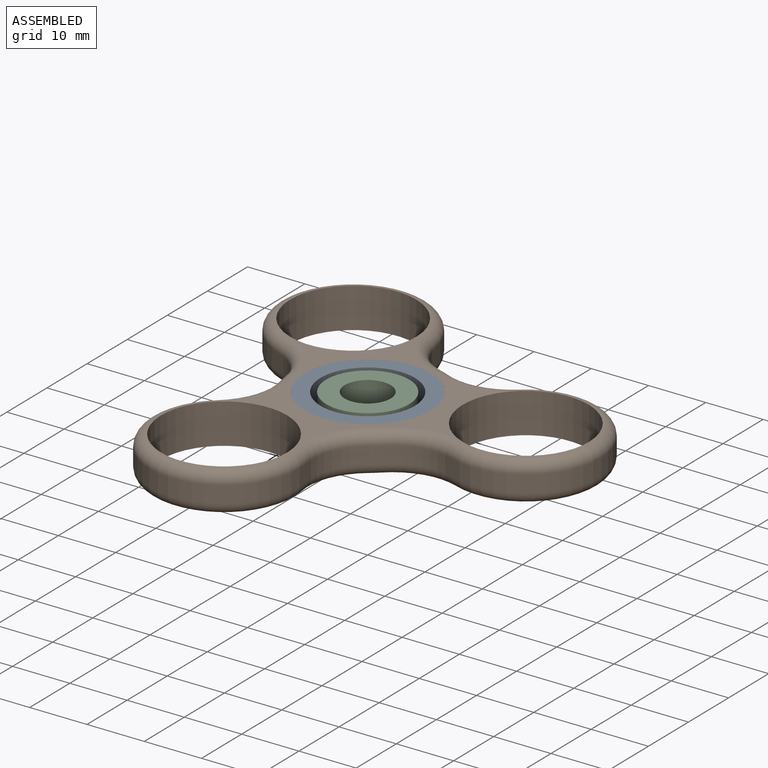
[diagram: assembled view]
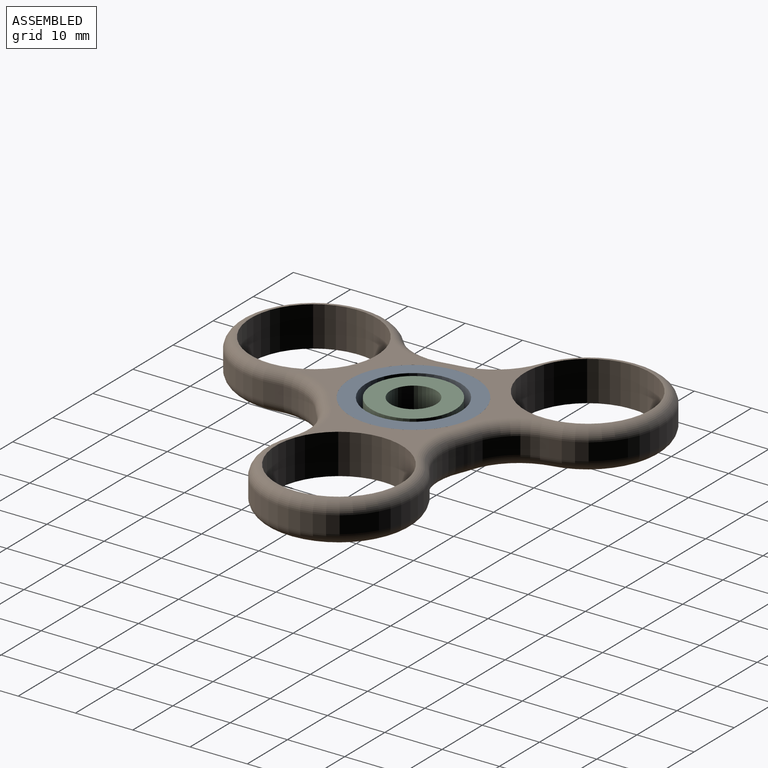
[diagram: assembled view, second angle]
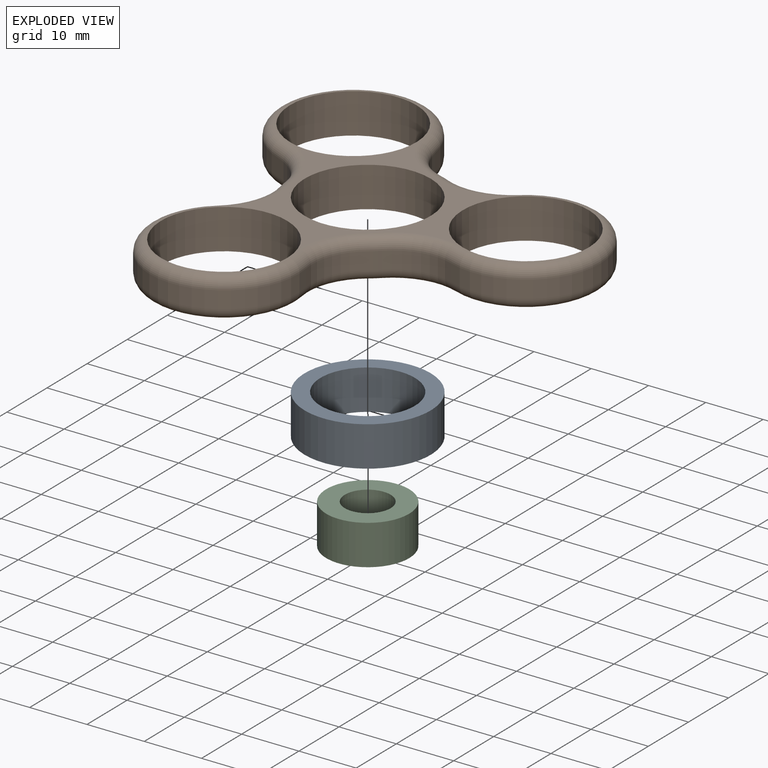
[diagram: exploded view]
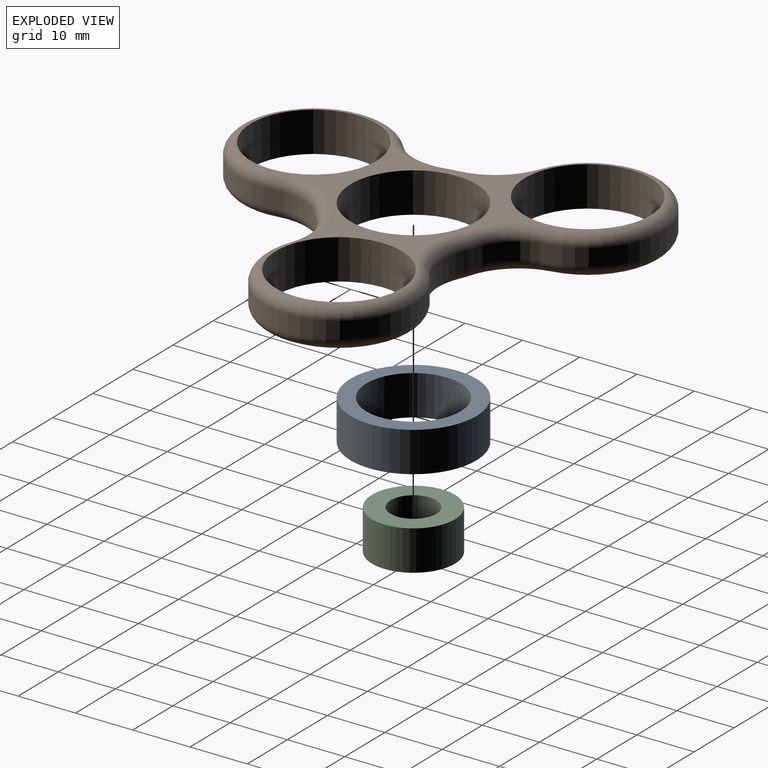
[diagram: exploded view, second angle]
ASSEMBLY  parts=3 mates=2
PART A: 4 faces, bbox 22x22x7 mm
  f0: cylinder r=8.25mm len=16.5mm, axis (0,0,-1), area 362.9mm2, adj f2,f3
  f1: cylinder r=11mm len=22mm, axis (0,0,-1), area 483.8mm2, adj f2,f3
  f2: plane 22x22mm, normal (0,0,1), area 166.3mm2, adj f0,f1
  f3: plane 22x22mm, normal (0,0,-1), area 166.3mm2, adj f0,f1
PART B: 42 faces, bbox 65.6x71.4x7 mm
  f0: cylinder r=14mm len=3mm, axis (0,0,-1), area 5.5mm2, adj f13,f14,f26,f37
  f1: cylinder r=14mm len=3mm, axis (0,0,-1), area 5.5mm2, adj f2,f15,f25,f30
  f2: cylinder r=10.19mm len=10.74mm, axis (0,0,-1), area 34mm2, adj f1,f6,f23,f32
  f3: cylinder r=14mm len=3mm, axis (0,0,-1), area 5.5mm2, adj f4,f12,f18,f38
  f4: cylinder r=10.19mm len=10.74mm, axis (0,0,-1), area 34mm2, adj f3,f6,f19,f36
  f5: cylinder r=11mm len=22mm, axis (0,0,-1), area 483.8mm2, adj f8,f9
  f6: cylinder r=13mm len=26mm, axis (0,0,-1), area 163.2mm2, adj f2,f4,f21,f34
  f7: cylinder r=11mm len=22mm, axis (0,0,-1), area 483.8mm2, adj f8,f9,f21,f34
  f8: plane 43.35x37.54mm, normal (0,0,1), area 280.2mm2, adj f5,f7,f11,f17,f18,f19,f20,f23
  f9: plane 43.35x37.54mm, normal (0,0,-1), area 280.2mm2, adj f5,f7,f11,f17,f30,f31,f32,f35
  f10: cylinder r=13mm len=26mm, axis (0,0,-1), area 163.2mm2, adj f12,f13,f22,f41
  f11: cylinder r=11mm len=22mm, axis (0,0,-1), area 483.8mm2, adj f8,f9,f22,f41
  f12: cylinder r=10.19mm len=9.12mm, axis (0,0,-1), area 34mm2, adj f3,f10,f20,f40
  f13: cylinder r=10.19mm len=9.48mm, axis (0,0,-1), area 34mm2, adj f0,f10,f24,f39
  f14: cylinder r=10.19mm len=9.48mm, axis (0,0,-1), area 34mm2, adj f0,f16,f28,f35
  f15: cylinder r=10.19mm len=9.12mm, axis (0,0,-1), area 34mm2, adj f1,f16,f27,f31
  f16: cylinder r=13mm len=26mm, axis (0,0,-1), area 163.2mm2, adj f14,f15,f29,f33
  f17: cylinder r=11mm len=22mm, axis (0,0,-1), area 483.8mm2, adj f8,f9,f29,f33
  f18: torus R=12mm, axis (0,0,1), area 5.5mm2, adj f3,f8,f19,f20
  f19: torus R=12.19mm, axis (0,0,1), area 38.1mm2, adj f4,f8,f18,f21
  f20: torus R=12.19mm, axis (0,0,1), area 38.1mm2, adj f8,f12,f18,f22
  f21: torus R=11mm, axis (0,0,1), area 161.3mm2, adj f6,f7,f19,f23
  f22: torus R=11mm, axis (0,0,1), area 161.3mm2, adj f10,f11,f20,f24
  f23: torus R=12.19mm, axis (0,0,1), area 38.1mm2, adj f2,f8,f21,f25
  f24: torus R=12.19mm, axis (0,0,1), area 38.1mm2, adj f8,f13,f22,f26
  f25: torus R=12mm, axis (0,0,1), area 5.5mm2, adj f1,f8,f23,f27
  f26: torus R=12mm, axis (0,0,1), area 5.5mm2, adj f0,f8,f24,f28
  f27: torus R=12.19mm, axis (0,0,1), area 38.1mm2, adj f8,f15,f25,f29
  f28: torus R=12.19mm, axis (0,0,1), area 38.1mm2, adj f8,f14,f26,f29
  f29: torus R=11mm, axis (0,0,1), area 161.3mm2, adj f16,f17,f27,f28
  f30: torus R=12mm, axis (0,0,1), area 5.5mm2, adj f1,f9,f31,f32
  f31: torus R=12.19mm, axis (0,0,1), area 38.1mm2, adj f9,f15,f30,f33
  f32: torus R=12.19mm, axis (0,0,1), area 38.1mm2, adj f2,f9,f30,f34
  f33: torus R=11mm, axis (0,0,1), area 161.3mm2, adj f16,f17,f31,f35
  f34: torus R=11mm, axis (0,0,1), area 161.3mm2, adj f6,f7,f32,f36
  f35: torus R=12.19mm, axis (0,0,1), area 38.1mm2, adj f9,f14,f33,f37
  f36: torus R=12.19mm, axis (0,0,1), area 38.1mm2, adj f4,f9,f34,f38
  f37: torus R=12mm, axis (0,0,1), area 5.5mm2, adj f0,f9,f35,f39
  f38: torus R=12mm, axis (0,0,1), area 5.5mm2, adj f3,f9,f36,f40
  f39: torus R=12.19mm, axis (0,0,1), area 38.1mm2, adj f9,f13,f37,f41
  f40: torus R=12.19mm, axis (0,0,1), area 38.1mm2, adj f9,f12,f38,f41
  f41: torus R=11mm, axis (0,0,1), area 161.3mm2, adj f10,f11,f39,f40
PART C: 4 faces, bbox 14.5x14.5x7 mm
  f0: cylinder r=4mm len=8mm, axis (0,0,-1), area 175.9mm2, adj f2,f3
  f1: cylinder r=7.25mm len=14.5mm, axis (0,0,-1), area 318.9mm2, adj f2,f3
  f2: plane 14.5x14.5mm, normal (0,0,1), area 114.9mm2, adj f0,f1
  f3: plane 14.5x14.5mm, normal (0,0,-1), area 114.9mm2, adj f0,f1
PLACE A rot(axis=(0,0,-1),140.2deg) t=(0,0,0)mm
PLACE B rot(axis=(0,0,1),129.8deg) t=(0,0,0)mm
PLACE C at identity fixed
MATE revolute A.f0 <-> C.f0  axis (0,0,1) through (0,0,7)mm
MATE fastened A.f0 <-> B.f0  axis (0,0,1) through (0,0,7)mm
